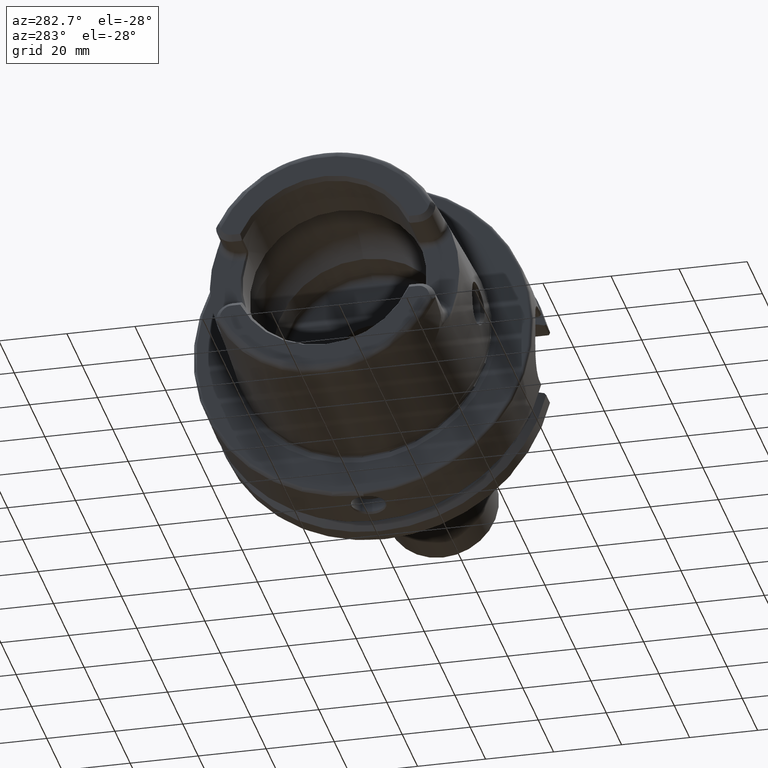
[diagram: clean part render]
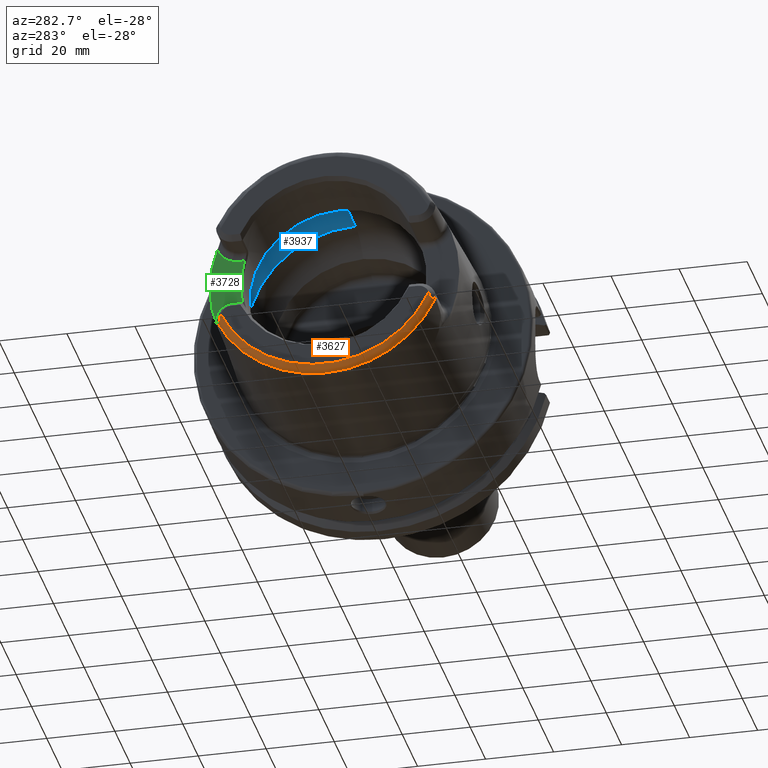
[diagram: same view with three faces highlighted in distinct colors, each labeled with its STEP entity id]
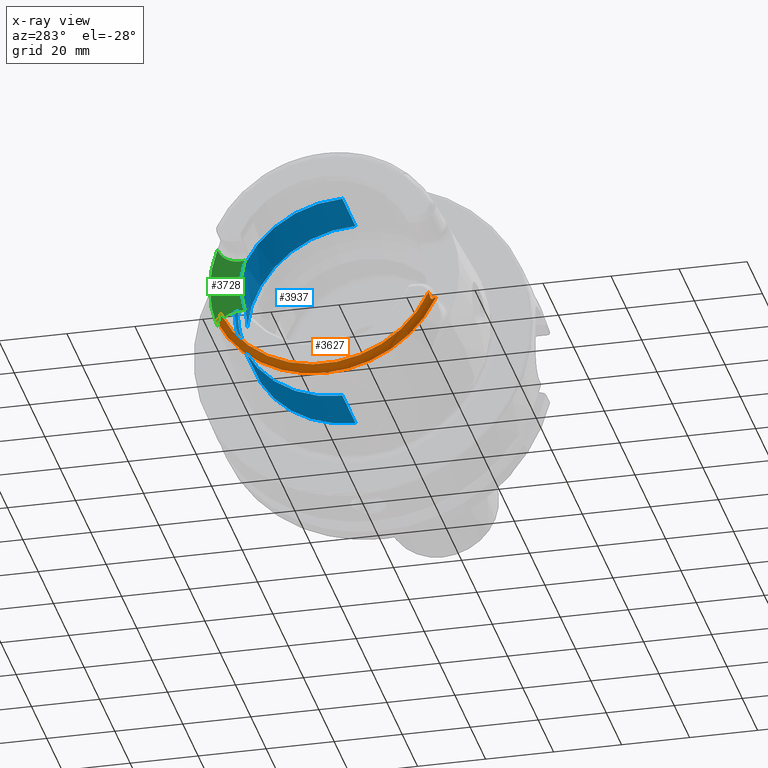
[diagram: x-ray of the same camera — body ghosted, the three highlighted faces saturated]
A machine part, auxiliary view with three faces highlighted in distinct colors.
The next image is the same camera in x-ray (body ghosted, the three faces saturated) — at least one of them is partly hidden behind the body in this view.
Their STEP definitions:

[orange] entity #3627 — the highlighted toroidal blend (fillet) surface has major radius 33.5937 mm and minor (blend) radius 2 mm.
#92=CARTESIAN_POINT('',(-5.E1,-3.059420437527E1,-1.387564988959E1));
#93=CARTESIAN_POINT('',(-5.E1,-3.062584045627E1,-1.397620805953E1));
#94=CARTESIAN_POINT('',(-4.999263105679E1,-3.068333180426E1,-1.416718159885E1));
#95=CARTESIAN_POINT('',(-4.996687632640E1,-3.075417851803E1,-1.442373326198E1));
#96=CARTESIAN_POINT('',(-4.993144046162E1,-3.081284192588E1,-1.465402471854E1));
#97=CARTESIAN_POINT('',(-4.988959824978E1,-3.086210695573E1,-1.486078071150E1));
#98=CARTESIAN_POINT('',(-4.984358496143E1,-3.090438597180E1,-1.504591023218E1));
#99=CARTESIAN_POINT('',(-4.979467108412E1,-3.094196481335E1,-1.521150516581E1));
#100=CARTESIAN_POINT('',(-4.974365683413E1,-3.097682604312E1,
-1.535863943125E1));
#101=CARTESIAN_POINT('',(-4.969091488404E1,-3.101088014291E1,
-1.548804467975E1));
#102=CARTESIAN_POINT('',(-4.963575308919E1,-3.104651213865E1,
-1.560107999563E1));
#103=CARTESIAN_POINT('',(-4.957868236239E1,-3.108533732092E1,
-1.569499326660E1));
#104=CARTESIAN_POINT('',(-4.952051768018E1,-3.112857582749E1,
-1.576720618410E1));
#105=CARTESIAN_POINT('',(-4.946038234804E1,-3.117822323969E1,
-1.581791698795E1));
#106=CARTESIAN_POINT('',(-4.939500911782E1,-3.123845562911E1,
-1.584664127786E1));
#107=CARTESIAN_POINT('',(-4.932445485768E1,-3.131049439011E1,
-1.584926414992E1));
#108=CARTESIAN_POINT('',(-4.925018317093E1,-3.139267320045E1,
-1.582513766474E1));
#109=CARTESIAN_POINT('',(-4.917328790602E1,-3.148235255953E1,
-1.577708481624E1));
#110=CARTESIAN_POINT('',(-4.909440873030E1,-3.157690347420E1,
-1.570926923550E1));
#111=CARTESIAN_POINT('',(-4.901179484175E1,-3.167670678231E1,
-1.562319476087E1));
#112=CARTESIAN_POINT('',(-4.892428589226E1,-3.178163590923E1,
-1.551943917590E1));
#113=CARTESIAN_POINT('',(-4.883073209136E1,-3.189158040817E1,
-1.539784545928E1));
#114=CARTESIAN_POINT('',(-4.872999393893E1,-3.200635517983E1,
-1.525762964313E1));
#115=CARTESIAN_POINT('',(-4.862081871840E1,-3.212574946323E1,
-1.509737131614E1));
#116=CARTESIAN_POINT('',(-4.854141210669E1,-3.220826425376E1,
-1.497567341958E1));
#117=CARTESIAN_POINT('',(-4.85E1,-3.224995489266E1,-1.491098202986E1));
#119=CARTESIAN_POINT('',(-4.810007223652E1,0.E0,0.E0));
#120=DIRECTION('',(1.E0,0.E0,0.E0));
#121=DIRECTION('',(0.E0,-9.060367502718E-1,-4.231990160159E-1));
#122=AXIS2_PLACEMENT_3D('',#119,#120,#121);
#124=CARTESIAN_POINT('',(-4.810007223652E1,0.E0,0.E0));
#125=DIRECTION('',(1.E0,0.E0,0.E0));
#126=DIRECTION('',(0.E0,-6.308654743756E-11,-1.E0));
#127=AXIS2_PLACEMENT_3D('',#124,#125,#126);
#133=CARTESIAN_POINT('',(-5.E1,3.059420437527E1,-1.387564988958E1));
#134=CARTESIAN_POINT('',(-5.E1,3.063947789759E1,-1.401955591106E1));
#135=CARTESIAN_POINT('',(-4.998515182806E1,3.071693152786E1,-1.428271835599E1));
#136=CARTESIAN_POINT('',(-4.994094557129E1,3.080098435214E1,-1.460457928017E1));
#137=CARTESIAN_POINT('',(-4.989181639558E1,3.086123631109E1,-1.485614446788E1));
#138=CARTESIAN_POINT('',(-4.982260941928E1,3.092243062493E1,-1.512557897963E1));
#139=CARTESIAN_POINT('',(-4.974937452978E1,3.097353175199E1,-1.534961972271E1));
#140=CARTESIAN_POINT('',(-4.965298051597E1,3.103504600382E1,-1.557549512023E1));
#141=CARTESIAN_POINT('',(-4.955427812082E1,3.110073323332E1,-1.573953932896E1));
#142=CARTESIAN_POINT('',(-4.942575670667E1,3.120608076641E1,-1.584943304348E1));
#143=CARTESIAN_POINT('',(-4.930038941131E1,3.133459884957E1,-1.585269093678E1));
#144=CARTESIAN_POINT('',(-4.916795161225E1,3.148796731125E1,-1.577802543306E1));
#145=CARTESIAN_POINT('',(-4.905304151947E1,3.162704218632E1,-1.566988248738E1));
#146=CARTESIAN_POINT('',(-4.892542400503E1,3.178052015134E1,-1.552246699893E1));
#147=CARTESIAN_POINT('',(-4.880887197215E1,3.191725914472E1,-1.536897003897E1));
#148=CARTESIAN_POINT('',(-4.866588271610E1,3.207801156788E1,-1.516569247732E1));
#149=CARTESIAN_POINT('',(-4.855792825524E1,3.219163701983E1,-1.500147390856E1));
#150=CARTESIAN_POINT('',(-4.85E1,3.224995489266E1,-1.491098202986E1));
#169=CARTESIAN_POINT('',(-4.85E1,3.224995489266E1,-1.491098202986E1));
#170=CARTESIAN_POINT('',(-4.845528036500E1,3.224983548461E1,-1.493875369481E1));
#171=CARTESIAN_POINT('',(-4.836611847252E1,3.224916038259E1,-1.498713118318E1));
#172=CARTESIAN_POINT('',(-4.823269523878E1,3.224781458143E1,-1.503770286509E1));
#173=CARTESIAN_POINT('',(-4.814421996360E1,3.224716138765E1,-1.505651967327E1));
#174=CARTESIAN_POINT('',(-4.810007223652E1,3.224696179732E1,-1.506217324853E1));
#770=CARTESIAN_POINT('',(-4.810007223652E1,-3.224696179732E1,
-1.506217324853E1));
#771=CARTESIAN_POINT('',(-4.814407715730E1,-3.224716074203E1,
-1.505653796110E1));
#772=CARTESIAN_POINT('',(-4.823236914782E1,-3.224781153303E1,
-1.503779415047E1));
#773=CARTESIAN_POINT('',(-4.836580934044E1,-3.224915745876E1,
-1.498727744849E1));
#774=CARTESIAN_POINT('',(-4.845515625320E1,-3.224983515322E1,
-1.493883077038E1));
#775=CARTESIAN_POINT('',(-4.85E1,-3.224995489266E1,-1.491098202986E1));
#805=CARTESIAN_POINT('',(-5.E1,0.E0,0.E0));
#806=DIRECTION('',(1.E0,0.E0,0.E0));
#807=DIRECTION('',(0.E0,-9.107116187708E-1,-4.130427912891E-1));
#808=AXIS2_PLACEMENT_3D('',#805,#806,#807);
#3005=CARTESIAN_POINT('',(-4.810007223652E1,-2.245327780064E-9,
-3.559122937083E1));
#3006=CARTESIAN_POINT('',(-4.810007223652E1,3.224696179732E1,
-1.506217324853E1));
#3007=VERTEX_POINT('',#3005);
#3008=VERTEX_POINT('',#3006);
#3023=VERTEX_POINT('',#133);
#3024=VERTEX_POINT('',#150);
#3025=CARTESIAN_POINT('',(-5.E1,-3.059420437526E1,-1.387564988957E1));
#3026=VERTEX_POINT('',#3025);
#3027=VERTEX_POINT('',#117);
#3028=VERTEX_POINT('',#770);
#3607=CARTESIAN_POINT('',(-4.8E1,0.E0,0.E0));
#3608=DIRECTION('',(1.E0,0.E0,0.E0));
#3609=DIRECTION('',(0.E0,-9.999995644445E-1,9.333331978271E-4));
#3610=AXIS2_PLACEMENT_3D('',#3607,#3608,#3609);
#3611=TOROIDAL_SURFACE('',#3610,3.359373455294E1,2.E0);
#3613=ORIENTED_EDGE('',*,*,#3612,.F.);
#3615=ORIENTED_EDGE('',*,*,#3614,.F.);
#3617=ORIENTED_EDGE('',*,*,#3616,.T.);
#3619=ORIENTED_EDGE('',*,*,#3618,.F.);
#3621=ORIENTED_EDGE('',*,*,#3620,.T.);
#3622=ORIENTED_EDGE('',*,*,#3578,.T.);
#3624=ORIENTED_EDGE('',*,*,#3623,.F.);
#3625=EDGE_LOOP('',(#3613,#3615,#3617,#3619,#3621,#3622,#3624));
#3626=FACE_OUTER_BOUND('',#3625,.F.);
#3627=ADVANCED_FACE('',(#3626),#3611,.T.);
#118=B_SPLINE_CURVE_WITH_KNOTS('',3,(#92,#93,#94,#95,#96,#97,#98,#99,#100,#101,
#102,#103,#104,#105,#106,#107,#108,#109,#110,#111,#112,#113,#114,#115,#116,
#117),.UNSPECIFIED.,.F.,.F.,(4,1,1,1,1,1,1,1,1,1,1,1,1,1,1,1,1,1,1,1,1,1,1,4),(
0.E0,4.347826086957E-2,8.695652173913E-2,1.304347826087E-1,1.739130434783E-1,
2.173913043478E-1,2.608695652174E-1,3.043478260870E-1,3.478260869565E-1,
3.913043478261E-1,4.347826086957E-1,4.782608695652E-1,5.217391304348E-1,
5.652173913043E-1,6.086956521739E-1,6.521739130435E-1,6.956521739130E-1,
7.391304347826E-1,7.826086956522E-1,8.260869565217E-1,8.695652173913E-1,
9.130434782609E-1,9.565217391304E-1,1.E0),.UNSPECIFIED.);
#123=CIRCLE('',#122,3.559122937083E1);
#128=CIRCLE('',#127,3.559122937083E1);
#151=B_SPLINE_CURVE_WITH_KNOTS('',3,(#133,#134,#135,#136,#137,#138,#139,#140,
#141,#142,#143,#144,#145,#146,#147,#148,#149,#150),.UNSPECIFIED.,.F.,.F.,(4,1,1,
1,1,1,1,1,1,1,1,1,1,1,1,4),(0.E0,6.666666666667E-2,1.333333333333E-1,2.E-1,
2.666666666667E-1,3.333333333333E-1,4.E-1,4.666666666667E-1,5.333333333333E-1,
6.E-1,6.666666666667E-1,7.333333333333E-1,8.E-1,8.666666666667E-1,
9.333333333333E-1,1.E0),.UNSPECIFIED.);
#175=B_SPLINE_CURVE_WITH_KNOTS('',3,(#169,#170,#171,#172,#173,#174),
.UNSPECIFIED.,.F.,.F.,(4,1,1,4),(0.E0,3.333333333333E-1,6.666666666667E-1,1.E0),
.UNSPECIFIED.);
#776=B_SPLINE_CURVE_WITH_KNOTS('',3,(#770,#771,#772,#773,#774,#775),
.UNSPECIFIED.,.F.,.F.,(4,1,1,4),(0.E0,3.333333333333E-1,6.666666666667E-1,1.E0),
.UNSPECIFIED.);
#809=CIRCLE('',#808,3.359373455294E1);
#3578=EDGE_CURVE('',#3007,#3008,#128,.T.);
#3612=EDGE_CURVE('',#3023,#3024,#151,.T.);
#3614=EDGE_CURVE('',#3026,#3023,#809,.T.);
#3616=EDGE_CURVE('',#3026,#3027,#118,.T.);
#3618=EDGE_CURVE('',#3028,#3027,#776,.T.);
#3620=EDGE_CURVE('',#3028,#3007,#123,.T.);
#3623=EDGE_CURVE('',#3024,#3008,#175,.T.);

[blue] entity #3937 — the highlighted cylindrical surface (partial cylindrical patch) has radius 31.9778 mm, axis along (1, 0, 0).
#389=CARTESIAN_POINT('',(-2.684076579106E1,0.E0,0.E0));
#390=DIRECTION('',(-1.E0,0.E0,0.E0));
#391=DIRECTION('',(0.E0,0.E0,1.E0));
#392=AXIS2_PLACEMENT_3D('',#389,#390,#391);
#394=CARTESIAN_POINT('',(-2.1E1,3.1977801E1,0.E0));
#395=CARTESIAN_POINT('',(-2.1E1,3.1977801E1,-4.906946701598E-1));
#396=CARTESIAN_POINT('',(-2.088355888564E1,3.195565927752E1,-1.440586541630E0));
#397=CARTESIAN_POINT('',(-2.036787147841E1,3.186306866744E1,-2.808378860203E0));
#398=CARTESIAN_POINT('',(-1.955172041756E1,3.173320385229E1,-3.997331229349E0));
#399=CARTESIAN_POINT('',(-1.847095320484E1,3.159391191740E1,-4.963542528372E0));
#400=CARTESIAN_POINT('',(-1.720520869959E1,3.147755218580E1,-5.642002583075E0));
#401=CARTESIAN_POINT('',(-1.579661622369E1,3.140895685176E1,-6.005298354870E0));
#402=CARTESIAN_POINT('',(-1.435585404959E1,3.140553274371E1,-6.022808762339E0));
#403=CARTESIAN_POINT('',(-1.293821383564E1,3.146753670818E1,-5.696479784623E0));
#404=CARTESIAN_POINT('',(-1.164858190822E1,3.158057741740E1,-5.046632663193E0));
#405=CARTESIAN_POINT('',(-1.053993567594E1,3.172005935678E1,-4.098098166524E0));
#406=CARTESIAN_POINT('',(-9.982645384742E0,3.180722393749E1,-3.326323316916E0));
#407=CARTESIAN_POINT('',(-9.7468E0,3.184612797556E1,-2.898946318923E0));
#409=DIRECTION('',(1.E0,0.E0,-1.787375616117E-14));
#410=VECTOR('',#409,1.709396579106E1);
#411=CARTESIAN_POINT('',(-2.684076579106E1,0.E0,3.1977801E1));
#412=LINE('',#411,#410);
#413=CARTESIAN_POINT('',(-9.7468E0,3.184612797556E1,2.898946318923E0));
#414=CARTESIAN_POINT('',(-9.982119746453E0,3.180731064452E1,3.325370804260E0));
#415=CARTESIAN_POINT('',(-1.053814928804E1,3.172033319772E1,4.095904972965E0));
#416=CARTESIAN_POINT('',(-1.164512240144E1,3.158095432921E1,5.044295512661E0));
#417=CARTESIAN_POINT('',(-1.293383403437E1,3.146785024813E1,5.694775955910E0));
#418=CARTESIAN_POINT('',(-1.435032891014E1,3.140563981624E1,6.022263858633E0));
#419=CARTESIAN_POINT('',(-1.579187089625E1,3.140883903773E1,6.005895353757E0));
#420=CARTESIAN_POINT('',(-1.719959828782E1,3.147716321430E1,5.644137963677E0));
#421=CARTESIAN_POINT('',(-1.846667510050E1,3.159341973138E1,4.966602154558E0));
#422=CARTESIAN_POINT('',(-1.954796446186E1,3.173266098902E1,4.001596444915E0));
#423=CARTESIAN_POINT('',(-2.036598426517E1,3.186273611036E1,2.812253443154E0));
#424=CARTESIAN_POINT('',(-2.088299179958E1,3.195555154277E1,1.443517977659E0));
#425=CARTESIAN_POINT('',(-2.1E1,3.1977801E1,4.918224781040E-1));
#426=CARTESIAN_POINT('',(-2.1E1,3.1977801E1,0.E0));
#454=CARTESIAN_POINT('',(-9.7468E0,3.184612797556E1,-2.898946318923E0));
#468=CARTESIAN_POINT('',(-9.7468E0,0.E0,0.E0));
#469=DIRECTION('',(1.E0,0.E0,0.E0));
#470=DIRECTION('',(0.E0,9.958823615032E-1,9.065496151292E-2));
#471=AXIS2_PLACEMENT_3D('',#468,#469,#470);
#483=CARTESIAN_POINT('',(-9.7468E0,0.E0,0.E0));
#484=DIRECTION('',(1.E0,0.E0,0.E0));
#485=DIRECTION('',(0.E0,0.E0,-1.E0));
#486=AXIS2_PLACEMENT_3D('',#483,#484,#485);
#578=DIRECTION('',(1.E0,0.E0,1.787375616117E-14));
#579=VECTOR('',#578,1.709396579106E1);
#580=CARTESIAN_POINT('',(-2.684076579106E1,0.E0,-3.1977801E1));
#581=LINE('',#580,#579);
#3095=CARTESIAN_POINT('',(-9.7468E0,0.E0,-3.1977801E1));
#3096=VERTEX_POINT('',#3095);
#3097=CARTESIAN_POINT('',(-9.7468E0,0.E0,3.1977801E1));
#3098=VERTEX_POINT('',#3097);
#3107=VERTEX_POINT('',#454);
#3108=VERTEX_POINT('',#394);
#3115=VERTEX_POINT('',#413);
#3116=CARTESIAN_POINT('',(-2.684076579106E1,0.E0,-3.1977801E1));
#3117=VERTEX_POINT('',#3116);
#3118=CARTESIAN_POINT('',(-2.684076579106E1,0.E0,3.1977801E1));
#3119=VERTEX_POINT('',#3118);
#3917=CARTESIAN_POINT('',(0.E0,0.E0,0.E0));
#3918=DIRECTION('',(1.E0,0.E0,0.E0));
#3919=DIRECTION('',(0.E0,0.E0,1.E0));
#3920=AXIS2_PLACEMENT_3D('',#3917,#3918,#3919);
#3921=CYLINDRICAL_SURFACE('',#3920,3.1977801E1);
#3923=ORIENTED_EDGE('',*,*,#3922,.T.);
#3925=ORIENTED_EDGE('',*,*,#3924,.F.);
#3927=ORIENTED_EDGE('',*,*,#3926,.F.);
#3928=ORIENTED_EDGE('',*,*,#3911,.F.);
#3930=ORIENTED_EDGE('',*,*,#3929,.T.);
#3932=ORIENTED_EDGE('',*,*,#3931,.F.);
#3934=ORIENTED_EDGE('',*,*,#3933,.T.);
#3935=EDGE_LOOP('',(#3923,#3925,#3927,#3928,#3930,#3932,#3934));
#3936=FACE_OUTER_BOUND('',#3935,.F.);
#3937=ADVANCED_FACE('',(#3936),#3921,.F.);
#393=CIRCLE('',#392,3.1977801E1);
#408=B_SPLINE_CURVE_WITH_KNOTS('',3,(#394,#395,#396,#397,#398,#399,#400,#401,
#402,#403,#404,#405,#406,#407),.UNSPECIFIED.,.F.,.F.,(4,1,1,1,1,1,1,1,1,1,1,4),(
0.E0,9.090909090909E-2,1.818181818182E-1,2.727272727273E-1,3.636363636364E-1,
4.545454545455E-1,5.454545454545E-1,6.363636363636E-1,7.272727272727E-1,
8.181818181818E-1,9.090909090909E-1,1.E0),.UNSPECIFIED.);
#427=B_SPLINE_CURVE_WITH_KNOTS('',3,(#413,#414,#415,#416,#417,#418,#419,#420,
#421,#422,#423,#424,#425,#426),.UNSPECIFIED.,.F.,.F.,(4,1,1,1,1,1,1,1,1,1,1,4),(
0.E0,9.090909090909E-2,1.818181818182E-1,2.727272727273E-1,3.636363636364E-1,
4.545454545455E-1,5.454545454545E-1,6.363636363636E-1,7.272727272727E-1,
8.181818181818E-1,9.090909090909E-1,1.E0),.UNSPECIFIED.);
#472=CIRCLE('',#471,3.1977801E1);
#487=CIRCLE('',#486,3.1977801E1);
#3911=EDGE_CURVE('',#3119,#3117,#393,.T.);
#3922=EDGE_CURVE('',#3108,#3107,#408,.T.);
#3924=EDGE_CURVE('',#3096,#3107,#487,.T.);
#3926=EDGE_CURVE('',#3117,#3096,#581,.T.);
#3929=EDGE_CURVE('',#3119,#3098,#412,.T.);
#3931=EDGE_CURVE('',#3115,#3098,#472,.T.);
#3933=EDGE_CURVE('',#3115,#3108,#427,.T.);

[green] entity #3728 — the highlighted planar face has unit normal (1, 0, 0).
#49=CARTESIAN_POINT('',(-4.E1,3.378887757492E1,1.241362953537E1));
#213=CARTESIAN_POINT('',(-4.E1,-3.108624468950E-13,-6.261657858886E-14));
#214=DIRECTION('',(-1.E0,0.E0,0.E0));
#215=DIRECTION('',(0.E0,9.549810813063E-1,2.966667058282E-1));
#216=AXIS2_PLACEMENT_3D('',#213,#214,#215);
#218=DIRECTION('',(-9.118010146331E-10,1.E0,3.151025920023E-7));
#219=VECTOR('',#218,1.585510683775E0);
#220=CARTESIAN_POINT('',(-3.999999999855E1,2.578448931815E1,-8.010000605217E0));
#221=LINE('',#220,#219);
#222=CARTESIAN_POINT('',(-4.E1,2.737E1,-1.489E1));
#223=DIRECTION('',(-1.E0,0.E0,0.E0));
#224=DIRECTION('',(0.E0,8.382070231703E-10,1.E0));
#225=AXIS2_PLACEMENT_3D('',#222,#223,#224);
#227=CARTESIAN_POINT('',(-4.E1,2.737E1,-1.489E1));
#228=DIRECTION('',(-1.E0,0.E0,0.E0));
#229=DIRECTION('',(0.E0,8.212570373432E-1,5.705583919410E-1));
#230=AXIS2_PLACEMENT_3D('',#227,#228,#229);
#232=CARTESIAN_POINT('',(-4.E1,0.E0,0.E0));
#233=DIRECTION('',(1.E0,0.E0,0.E0));
#234=DIRECTION('',(0.E0,9.386572714715E-1,-3.448514560120E-1));
#235=AXIS2_PLACEMENT_3D('',#232,#233,#234);
#237=CARTESIAN_POINT('',(-4.E1,2.737E1,1.489E1));
#238=DIRECTION('',(-1.E0,0.E0,0.E0));
#239=DIRECTION('',(0.E0,9.329763917043E-1,-3.599375675341E-1));
#240=AXIS2_PLACEMENT_3D('',#237,#238,#239);
#242=CARTESIAN_POINT('',(-4.E1,2.737E1,1.489E1));
#243=DIRECTION('',(-1.E0,0.E0,0.E0));
#244=DIRECTION('',(0.E0,8.213451203199E-1,-5.704315851412E-1));
#245=AXIS2_PLACEMENT_3D('',#242,#243,#244);
#1018=DIRECTION('',(-1.711116899460E-9,9.999999999998E-1,-5.992051681830E-7));
#1019=VECTOR('',#1018,1.585510770501E0);
#1020=CARTESIAN_POINT('',(-3.999999999729E1,2.578448923036E1,8.010000950150E0));
#1021=LINE('',#1020,#1019);
#3017=VERTEX_POINT('',#49);
#3018=CARTESIAN_POINT('',(-4.E1,3.378887757492E1,-1.241362953536E1));
#3019=VERTEX_POINT('',#3018);
#3044=CARTESIAN_POINT('',(-4.E1,3.302024841692E1,-1.096455826345E1));
#3045=VERTEX_POINT('',#3044);
#3046=CARTESIAN_POINT('',(-4.E1,2.737000000577E1,-8.01E0));
#3047=VERTEX_POINT('',#3046);
#3048=CARTESIAN_POINT('',(-4.E1,2.578448919527E1,8.010001057361E0));
#3049=CARTESIAN_POINT('',(-4.E1,2.578448932743E1,-8.010000631937E0));
#3050=VERTEX_POINT('',#3048);
#3051=VERTEX_POINT('',#3049);
#3052=CARTESIAN_POINT('',(-4.E1,3.302085442780E1,1.096543069423E1));
#3053=VERTEX_POINT('',#3052);
#3054=CARTESIAN_POINT('',(-4.E1,2.737000000257E1,8.01E0));
#3055=VERTEX_POINT('',#3054);
#3708=CARTESIAN_POINT('',(-4.E1,0.E0,1.001E1));
#3709=DIRECTION('',(1.E0,0.E0,0.E0));
#3710=DIRECTION('',(0.E0,0.E0,-1.E0));
#3711=AXIS2_PLACEMENT_3D('',#3708,#3709,#3710);
#3712=PLANE('',#3711);
#3714=ORIENTED_EDGE('',*,*,#3713,.T.);
#3716=ORIENTED_EDGE('',*,*,#3715,.T.);
#3717=ORIENTED_EDGE('',*,*,#3698,.T.);
#3718=ORIENTED_EDGE('',*,*,#3696,.T.);
#3719=ORIENTED_EDGE('',*,*,#3592,.T.);
#3721=ORIENTED_EDGE('',*,*,#3720,.T.);
#3723=ORIENTED_EDGE('',*,*,#3722,.T.);
#3725=ORIENTED_EDGE('',*,*,#3724,.F.);
#3726=EDGE_LOOP('',(#3714,#3716,#3717,#3718,#3719,#3721,#3723,#3725));
#3727=FACE_OUTER_BOUND('',#3726,.F.);
#3728=ADVANCED_FACE('',(#3727),#3712,.F.);
#217=CIRCLE('',#216,2.7E1);
#226=CIRCLE('',#225,6.88E0);
#231=CIRCLE('',#230,6.88E0);
#236=CIRCLE('',#235,3.599703385023E1);
#241=CIRCLE('',#240,6.88E0);
#246=CIRCLE('',#245,6.88E0);
#3592=EDGE_CURVE('',#3019,#3017,#236,.T.);
#3696=EDGE_CURVE('',#3045,#3019,#231,.T.);
#3698=EDGE_CURVE('',#3047,#3045,#226,.T.);
#3713=EDGE_CURVE('',#3050,#3051,#217,.T.);
#3715=EDGE_CURVE('',#3051,#3047,#221,.T.);
#3720=EDGE_CURVE('',#3017,#3053,#241,.T.);
#3722=EDGE_CURVE('',#3053,#3055,#246,.T.);
#3724=EDGE_CURVE('',#3050,#3055,#1021,.T.);